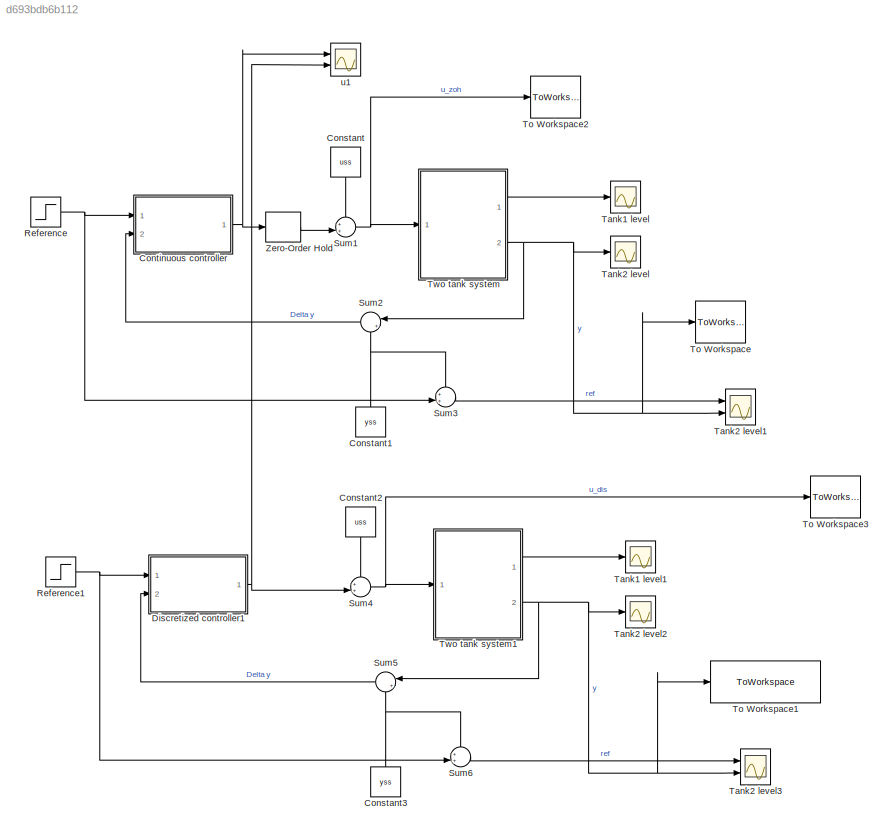
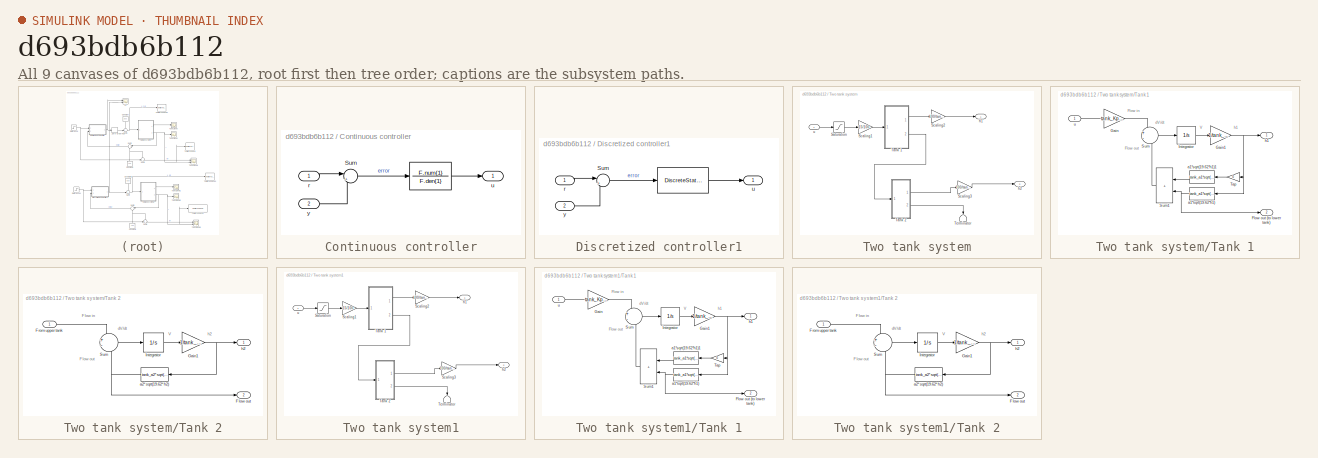
[diagram: thumbnail index - all 9 canvases of the model, root first then tree order]
MODEL mdl_d693bdb6b112
KIND model
CONFIG AbsTol = auto
CONFIG EnableMultiTasking = off
CONFIG FixedStep = auto
CONFIG MaxStep = auto
CONFIG MinStep = auto
CONFIG RelTol = 1e-3
CONFIG SampleTimeConstraint = Unconstrained
CONFIG SolverName = VariableStepAuto
CONFIG StartTime = 0.0
CONFIG StopTime =   200
BLOCK [Constant] Constant
  NameLocation = left
  Value = uss
BLOCK [Constant] Constant1
  NameLocation = right
  Value = yss
BLOCK [Constant] Constant2
  NameLocation = left
  Value = uss
BLOCK [Constant] Constant3
  NameLocation = right
  Value = yss
BLOCK [SubSystem] Continuous controller
  Ports = [2, 1]
  RequestExecContextInheritance = off
BLOCK [TransferFcn] Continuous controller/ 
  Denominator = F.den{1}
  NameLocation = top
  Numerator = F.num{1}
BLOCK [Sum] Continuous controller/Sum
  Inputs = |+-
  Ports = [2, 1]
  SaturateOnIntegerOverflow = on
BLOCK [Inport] Continuous controller/r
BLOCK [Outport] Continuous controller/u
BLOCK [Inport] Continuous controller/y
  Port = 2
BLOCK [SubSystem] Discretized controller1
  Ports = [2, 1]
  RequestExecContextInheritance = off
BLOCK [DiscreteStateSpace] Discretized controller1/ 
  A = A_discretized
  B = B_discretized
  C = C_discretized
  D = D_discretized
  NameLocation = top
  SampleTime = Ts
BLOCK [Sum] Discretized controller1/Sum
  Inputs = |+-
  Ports = [2, 1]
  SaturateOnIntegerOverflow = on
BLOCK [Inport] Discretized controller1/r
BLOCK [Outport] Discretized controller1/u
BLOCK [Inport] Discretized controller1/y
  Port = 2
BLOCK [Step] Reference
  After = 10
  SampleTime = 0
  Time = 25
BLOCK [Step] Reference1
  After = 10
  SampleTime = 0
  Time = 25
BLOCK [Sum] Sum1
  Inputs = ++|
  NameLocation = top
  Ports = [2, 1]
BLOCK [Sum] Sum2
  Inputs = |+-
  Ports = [2, 1]
BLOCK [Sum] Sum3
  Inputs = ++|
  NameLocation = top
  Ports = [2, 1]
BLOCK [Sum] Sum4
  Inputs = ++|
  NameLocation = top
  Ports = [2, 1]
BLOCK [Sum] Sum5
  Inputs = |+-
  Ports = [2, 1]
BLOCK [Sum] Sum6
  Inputs = ++|
  NameLocation = top
  Ports = [2, 1]
BLOCK [Scope] Tank1 level
  Floating = off
  NumInputPorts = 1
  Ports = [1]
  ScopeSpecificationString = Simulink.scopes.TimeScopeBlockCfg('CurrentConfiguration', extmgr.ConfigurationSet(extmgr.Configuration('Core','General UI',true),extmgr.Configuration('Core','Source UI',true),extmgr.Configuration('Sources','WiredSimulink',true,'DataLoggingSaveFormat','StructureWithTime','DataLoggingLimitDataPoints',true,'DataLoggingDecimation','1','DataLoggingDecimateData',true,'DataLoggingVariableName','ScopeData...<+1711ch>
BLOCK [Scope] Tank1 level1
  Floating = off
  NumInputPorts = 1
  Ports = [1]
  ScopeSpecificationString = Simulink.scopes.TimeScopeBlockCfg('CurrentConfiguration', extmgr.ConfigurationSet(extmgr.Configuration('Core','General UI',true),extmgr.Configuration('Core','Source UI',true),extmgr.Configuration('Sources','WiredSimulink',true,'DataLoggingSaveFormat','StructureWithTime','DataLoggingLimitDataPoints',true,'DataLoggingDecimation','1','DataLoggingDecimateData',true,'DataLoggingVariableName','ScopeData...<+1711ch>
BLOCK [Scope] Tank2 level
  Floating = off
  NumInputPorts = 1
  Ports = [1]
  ScopeSpecificationString = Simulink.scopes.TimeScopeBlockCfg('CurrentConfiguration', extmgr.ConfigurationSet(extmgr.Configuration('Core','General UI',true),extmgr.Configuration('Core','Source UI',true),extmgr.Configuration('Sources','WiredSimulink',true,'DataLoggingSaveFormat','StructureWithTime','DataLoggingDecimation','1','DataLoggingDecimateData',true,'DataLoggingVariableName','ScopeData2'),extmgr.Configuration('Visuals'...<+1663ch>
BLOCK [Scope] Tank2 level1
  Floating = off
  NumInputPorts = 2
  Ports = [2]
  ScopeSpecificationString = Simulink.scopes.TimeScopeBlockCfg('CurrentConfiguration', extmgr.ConfigurationSet(extmgr.Configuration('Core','General UI',true,'FigureColor',[1 1 1]),extmgr.Configuration('Core','Source UI',true),extmgr.Configuration('Sources','WiredSimulink',true,'DataLoggingSaveFormat','StructureWithTime','DataLoggingDecimation','1','DataLoggingDecimateData',true,'DataLoggingVariableName','ScopeData3'),extmgr.C...<+2076ch>
BLOCK [Scope] Tank2 level2
  Floating = off
  NumInputPorts = 1
  Ports = [1]
  ScopeSpecificationString = Simulink.scopes.TimeScopeBlockCfg('CurrentConfiguration', extmgr.ConfigurationSet(extmgr.Configuration('Core','General UI',true),extmgr.Configuration('Core','Source UI',true),extmgr.Configuration('Sources','WiredSimulink',true,'DataLoggingSaveFormat','StructureWithTime','DataLoggingDecimation','1','DataLoggingDecimateData',true,'DataLoggingVariableName','ScopeData2'),extmgr.Configuration('Visuals'...<+1663ch>
BLOCK [Scope] Tank2 level3
  Floating = off
  NumInputPorts = 2
  Ports = [2]
  ScopeSpecificationString = Simulink.scopes.TimeScopeBlockCfg('CurrentConfiguration', extmgr.ConfigurationSet(extmgr.Configuration('Core','General UI',true,'FigureColor',[1 1 1]),extmgr.Configuration('Core','Source UI',true),extmgr.Configuration('Sources','WiredSimulink',true,'DataLoggingSaveFormat','StructureWithTime','DataLoggingDecimation','1','DataLoggingDecimateData',true,'DataLoggingVariableName','ScopeData3'),extmgr.C...<+2076ch>
BLOCK [ToWorkspace] To Workspace
  MaxDataPoints = inf
  Ports = [1]
  SampleTime = -1
  Save2DSignal = 2-D array (concatenate along first dimension)
  SaveFormat = Structure With Time
  VariableName = tanksDis_zoh_out
BLOCK [ToWorkspace] To Workspace1
  MaxDataPoints = inf
  Ports = [1]
  SampleTime = -1
  Save2DSignal = 2-D array (concatenate along first dimension)
  SaveFormat = Structure With Time
  VariableName = tanksDis_dis_out
BLOCK [ToWorkspace] To Workspace2
  MaxDataPoints = inf
  Ports = [1]
  SampleTime = -1
  Save2DSignal = 2-D array (concatenate along first dimension)
  SaveFormat = Structure With Time
  VariableName = u_zoh
BLOCK [ToWorkspace] To Workspace3
  MaxDataPoints = inf
  Ports = [1]
  SampleTime = -1
  Save2DSignal = 2-D array (concatenate along first dimension)
  SaveFormat = Structure With Time
  VariableName = u_dis
BLOCK [SubSystem] Two tank system
  Ports = [1, 2]
  RequestExecContextInheritance = off
BLOCK [Saturate] Two tank system/Saturation
  LowerLimit = -0
  UpperLimit = 100
BLOCK [Gain] Two tank system/Scaling1
  Gain = 15/100
  OutDataTypeStr = Inherit: Same as input
  ParamDataTypeStr = Inherit: Same as input
  SaturateOnIntegerOverflow = on
BLOCK [Gain] Two tank system/Scaling2
  Gain = 100/tank_H1
  OutDataTypeStr = Inherit: Same as input
  ParamDataTypeStr = Inherit: Same as input
  SaturateOnIntegerOverflow = on
BLOCK [Gain] Two tank system/Scaling3
  Gain = 100/tank_H2
  OutDataTypeStr = Inherit: Same as input
  ParamDataTypeStr = Inherit: Same as input
  SaturateOnIntegerOverflow = on
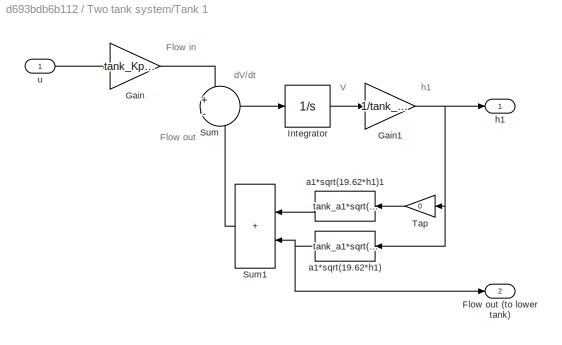
BLOCK [SubSystem] Two tank system/Tank 1
  Ports = [1, 2]
  RequestExecContextInheritance = off
BLOCK [Outport] Two tank system/Tank 1/Flow out  (to lower tank)
  Port = 2
BLOCK [Gain] Two tank system/Tank 1/Gain
  Gain = tank_Kpump
  OutDataTypeStr = Inherit: Same as input
  ParamDataTypeStr = Inherit: Same as input
  SaturateOnIntegerOverflow = on
BLOCK [Gain] Two tank system/Tank 1/Gain1
  Gain = 1/tank_A1
  OutDataTypeStr = Inherit: Same as input
  ParamDataTypeStr = Inherit: Same as input
  SaturateOnIntegerOverflow = on
BLOCK [Integrator] Two tank system/Tank 1/Integrator
  InitialCondition = tank_init_h1*tank_A1
  LimitOutput = on
  LowerSaturationLimit = 0
  Ports = [1, 1]
  UpperSaturationLimit = tank_H1*tank_A1
BLOCK [Sum] Two tank system/Tank 1/Sum
  InputSameDT = on
  Inputs = +-
  OutDataTypeStr = Inherit: Same as first input
  Ports = [2, 1]
  SaturateOnIntegerOverflow = on
BLOCK [Sum] Two tank system/Tank 1/Sum1
  IconShape = rectangular
  InputSameDT = on
  NameLocation = top
  OutDataTypeStr = Inherit: Same as first input
  Ports = [2, 1]
  SaturateOnIntegerOverflow = on
BLOCK [Gain] Two tank system/Tank 1/Tap
  Gain = 0
  NameLocation = top
  OutDataTypeStr = Inherit: Same as input
  ParamDataTypeStr = Inherit: Same as input
  SaturateOnIntegerOverflow = on
BLOCK [Fcn] Two tank system/Tank 1/a1*sqrt(19.62*h1)
  Expr = tank_a1*sqrt(19.62*u)
BLOCK [Fcn] Two tank system/Tank 1/a1*sqrt(19.62*h1)1
  Expr = tank_a1*sqrt(19.62*u)
  NameLocation = top
BLOCK [Outport] Two tank system/Tank 1/h1
BLOCK [Inport] Two tank system/Tank 1/u
BLOCK [SubSystem] Two tank system/Tank 2
  Ports = [1, 2]
  RequestExecContextInheritance = off
BLOCK [Outport] Two tank system/Tank 2/Flow out
  Port = 2
BLOCK [Inport] Two tank system/Tank 2/From upper tank
BLOCK [Gain] Two tank system/Tank 2/Gain1
  Gain = 1/tank_A2
  OutDataTypeStr = Inherit: Same as input
  ParamDataTypeStr = Inherit: Same as input
  SaturateOnIntegerOverflow = on
BLOCK [Integrator] Two tank system/Tank 2/Integrator
  InitialCondition = tank_init_h2*tank_A2
  LimitOutput = on
  LowerSaturationLimit = 0
  Ports = [1, 1]
  UpperSaturationLimit = tank_H2*tank_A2
BLOCK [Sum] Two tank system/Tank 2/Sum
  InputSameDT = on
  Inputs = +-
  OutDataTypeStr = Inherit: Same as first input
  Ports = [2, 1]
  SaturateOnIntegerOverflow = on
BLOCK [Fcn] Two tank system/Tank 2/a2*sqrt(19.62*h2)
  Expr = tank_a2*sqrt(19.62*u)
BLOCK [Outport] Two tank system/Tank 2/h2
BLOCK [Terminator] Two tank system/Terminator
  NameLocation = right
BLOCK [Outport] Two tank system/h1
BLOCK [Outport] Two tank system/h2
  Port = 2
BLOCK [Inport] Two tank system/u
BLOCK [SubSystem] Two tank system1
  Ports = [1, 2]
  RequestExecContextInheritance = off
BLOCK [Saturate] Two tank system1/Saturation
  LowerLimit = -0
  UpperLimit = 100
BLOCK [Gain] Two tank system1/Scaling1
  Gain = 15/100
  OutDataTypeStr = Inherit: Same as input
  ParamDataTypeStr = Inherit: Same as input
  SaturateOnIntegerOverflow = on
BLOCK [Gain] Two tank system1/Scaling2
  Gain = 100/tank_H1
  OutDataTypeStr = Inherit: Same as input
  ParamDataTypeStr = Inherit: Same as input
  SaturateOnIntegerOverflow = on
BLOCK [Gain] Two tank system1/Scaling3
  Gain = 100/tank_H2
  OutDataTypeStr = Inherit: Same as input
  ParamDataTypeStr = Inherit: Same as input
  SaturateOnIntegerOverflow = on
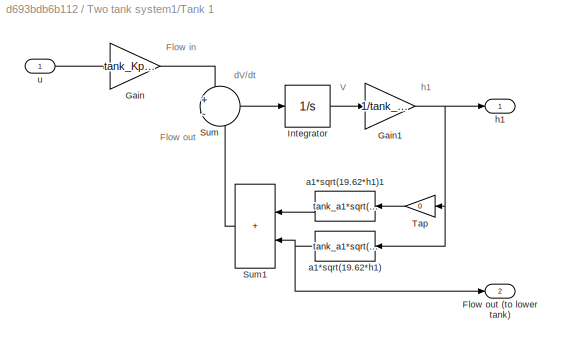
BLOCK [SubSystem] Two tank system1/Tank 1
  Ports = [1, 2]
  RequestExecContextInheritance = off
BLOCK [Outport] Two tank system1/Tank 1/Flow out  (to lower tank)
  Port = 2
BLOCK [Gain] Two tank system1/Tank 1/Gain
  Gain = tank_Kpump
  OutDataTypeStr = Inherit: Same as input
  ParamDataTypeStr = Inherit: Same as input
  SaturateOnIntegerOverflow = on
BLOCK [Gain] Two tank system1/Tank 1/Gain1
  Gain = 1/tank_A1
  OutDataTypeStr = Inherit: Same as input
  ParamDataTypeStr = Inherit: Same as input
  SaturateOnIntegerOverflow = on
BLOCK [Integrator] Two tank system1/Tank 1/Integrator
  InitialCondition = tank_init_h1*tank_A1
  LimitOutput = on
  LowerSaturationLimit = 0
  Ports = [1, 1]
  UpperSaturationLimit = tank_H1*tank_A1
BLOCK [Sum] Two tank system1/Tank 1/Sum
  InputSameDT = on
  Inputs = +-
  OutDataTypeStr = Inherit: Same as first input
  Ports = [2, 1]
  SaturateOnIntegerOverflow = on
BLOCK [Sum] Two tank system1/Tank 1/Sum1
  IconShape = rectangular
  InputSameDT = on
  NameLocation = top
  OutDataTypeStr = Inherit: Same as first input
  Ports = [2, 1]
  SaturateOnIntegerOverflow = on
BLOCK [Gain] Two tank system1/Tank 1/Tap
  Gain = 0
  NameLocation = top
  OutDataTypeStr = Inherit: Same as input
  ParamDataTypeStr = Inherit: Same as input
  SaturateOnIntegerOverflow = on
BLOCK [Fcn] Two tank system1/Tank 1/a1*sqrt(19.62*h1)
  Expr = tank_a1*sqrt(19.62*u)
BLOCK [Fcn] Two tank system1/Tank 1/a1*sqrt(19.62*h1)1
  Expr = tank_a1*sqrt(19.62*u)
  NameLocation = top
BLOCK [Outport] Two tank system1/Tank 1/h1
BLOCK [Inport] Two tank system1/Tank 1/u
BLOCK [SubSystem] Two tank system1/Tank 2
  Ports = [1, 2]
  RequestExecContextInheritance = off
BLOCK [Outport] Two tank system1/Tank 2/Flow out
  Port = 2
BLOCK [Inport] Two tank system1/Tank 2/From upper tank
BLOCK [Gain] Two tank system1/Tank 2/Gain1
  Gain = 1/tank_A2
  OutDataTypeStr = Inherit: Same as input
  ParamDataTypeStr = Inherit: Same as input
  SaturateOnIntegerOverflow = on
BLOCK [Integrator] Two tank system1/Tank 2/Integrator
  InitialCondition = tank_init_h2*tank_A2
  LimitOutput = on
  LowerSaturationLimit = 0
  Ports = [1, 1]
  UpperSaturationLimit = tank_H2*tank_A2
BLOCK [Sum] Two tank system1/Tank 2/Sum
  InputSameDT = on
  Inputs = +-
  OutDataTypeStr = Inherit: Same as first input
  Ports = [2, 1]
  SaturateOnIntegerOverflow = on
BLOCK [Fcn] Two tank system1/Tank 2/a2*sqrt(19.62*h2)
  Expr = tank_a2*sqrt(19.62*u)
BLOCK [Outport] Two tank system1/Tank 2/h2
BLOCK [Terminator] Two tank system1/Terminator
  NameLocation = right
BLOCK [Outport] Two tank system1/h1
BLOCK [Outport] Two tank system1/h2
  Port = 2
BLOCK [Inport] Two tank system1/u
BLOCK [ZeroOrderHold] Zero-Order Hold
  SampleTime = Ts
BLOCK [Scope] u1
  Floating = off
  NumInputPorts = 2
  Ports = [2]
  ScopeSpecificationString = Simulink.scopes.TimeScopeBlockCfg('CurrentConfiguration', extmgr.ConfigurationSet(extmgr.Configuration('Core','General UI',true),extmgr.Configuration('Core','Source UI',true),extmgr.Configuration('Sources','WiredSimulink',true,'DataLoggingSaveFormat','StructureWithTime','DataLoggingLimitDataPoints',true,'DataLoggingDecimation','1','DataLoggingDecimateData',true,'DataLoggingVariableName','ScopeData...<+1857ch>
ANNOTATION Two tank system/Tank 1: Flow in
ANNOTATION Two tank system/Tank 1: Flow out
ANNOTATION Two tank system/Tank 1: V
ANNOTATION Two tank system/Tank 1: dV/dt
ANNOTATION Two tank system/Tank 1: h1
ANNOTATION Two tank system/Tank 2: Flow in
ANNOTATION Two tank system/Tank 2: Flow out
ANNOTATION Two tank system/Tank 2: V
ANNOTATION Two tank system/Tank 2: dV/dt
ANNOTATION Two tank system/Tank 2: h2
ANNOTATION Two tank system1/Tank 1: Flow in
ANNOTATION Two tank system1/Tank 1: Flow out
ANNOTATION Two tank system1/Tank 1: V
ANNOTATION Two tank system1/Tank 1: dV/dt
ANNOTATION Two tank system1/Tank 1: h1
ANNOTATION Two tank system1/Tank 2: Flow in
ANNOTATION Two tank system1/Tank 2: Flow out
ANNOTATION Two tank system1/Tank 2: V
ANNOTATION Two tank system1/Tank 2: dV/dt
ANNOTATION Two tank system1/Tank 2: h2
NET Constant1:1 -> Sum2:2, Sum3:1
LINE Constant2:1 -> Sum4:1
NET Constant3:1 -> Sum5:2, Sum6:1
LINE Constant:1 -> Sum1:1
LINE Continuous controller/ :1 -> Continuous controller/u:1
LINE Continuous controller/Sum:1 -> Continuous controller/ :1
LINE Continuous controller/r:1 -> Continuous controller/Sum:1
LINE Continuous controller/y:1 -> Continuous controller/Sum:2
NET Continuous controller:1 -> Zero-Order Hold:1, u1:1
LINE Discretized controller1/ :1 -> Discretized controller1/u:1
LINE Discretized controller1/Sum:1 -> Discretized controller1/ :1
LINE Discretized controller1/r:1 -> Discretized controller1/Sum:1
LINE Discretized controller1/y:1 -> Discretized controller1/Sum:2
NET Discretized controller1:1 -> Sum4:2, u1:2
NET Reference1:1 -> Discretized controller1:1, Sum6:2
NET Reference:1 -> Continuous controller:1, Sum3:2
NET Sum1:1 -> To Workspace2:1, Two tank system:1
LINE Sum2:1 -> Continuous controller:2
LINE Sum3:1 -> Tank2 level1:1
NET Sum4:1 -> To Workspace3:1, Two tank system1:1
LINE Sum5:1 -> Discretized controller1:2
LINE Sum6:1 -> Tank2 level3:1
LINE Two tank system/Saturation:1 -> Two tank system/Scaling1:1
LINE Two tank system/Scaling1:1 -> Two tank system/Tank 1:1
LINE Two tank system/Scaling2:1 -> Two tank system/h1:1
LINE Two tank system/Scaling3:1 -> Two tank system/h2:1
NET Two tank system/Tank 1/Gain1:1 -> Two tank system/Tank 1/Tap:1, Two tank system/Tank 1/a1*sqrt(19.62*h1):1, Two tank system/Tank 1/h1:1
LINE Two tank system/Tank 1/Gain:1 -> Two tank system/Tank 1/Sum:1
LINE Two tank system/Tank 1/Integrator:1 -> Two tank system/Tank 1/Gain1:1
LINE Two tank system/Tank 1/Sum1:1 -> Two tank system/Tank 1/Sum:2
LINE Two tank system/Tank 1/Sum:1 -> Two tank system/Tank 1/Integrator:1
LINE Two tank system/Tank 1/Tap:1 -> Two tank system/Tank 1/a1*sqrt(19.62*h1)1:1
LINE Two tank system/Tank 1/a1*sqrt(19.62*h1)1:1 -> Two tank system/Tank 1/Sum1:1
NET Two tank system/Tank 1/a1*sqrt(19.62*h1):1 -> Two tank system/Tank 1/Flow out  (to lower tank):1, Two tank system/Tank 1/Sum1:2
LINE Two tank system/Tank 1/u:1 -> Two tank system/Tank 1/Gain:1
LINE Two tank system/Tank 1:1 -> Two tank system/Scaling2:1
LINE Two tank system/Tank 1:2 -> Two tank system/Tank 2:1
LINE Two tank system/Tank 2/From upper tank:1 -> Two tank system/Tank 2/Sum:1
NET Two tank system/Tank 2/Gain1:1 -> Two tank system/Tank 2/a2*sqrt(19.62*h2):1, Two tank system/Tank 2/h2:1
LINE Two tank system/Tank 2/Integrator:1 -> Two tank system/Tank 2/Gain1:1
LINE Two tank system/Tank 2/Sum:1 -> Two tank system/Tank 2/Integrator:1
NET Two tank system/Tank 2/a2*sqrt(19.62*h2):1 -> Two tank system/Tank 2/Flow out:1, Two tank system/Tank 2/Sum:2
LINE Two tank system/Tank 2:1 -> Two tank system/Scaling3:1
LINE Two tank system/Tank 2:2 -> Two tank system/Terminator:1
LINE Two tank system/u:1 -> Two tank system/Saturation:1
LINE Two tank system1/Saturation:1 -> Two tank system1/Scaling1:1
LINE Two tank system1/Scaling1:1 -> Two tank system1/Tank 1:1
LINE Two tank system1/Scaling2:1 -> Two tank system1/h1:1
LINE Two tank system1/Scaling3:1 -> Two tank system1/h2:1
NET Two tank system1/Tank 1/Gain1:1 -> Two tank system1/Tank 1/Tap:1, Two tank system1/Tank 1/a1*sqrt(19.62*h1):1, Two tank system1/Tank 1/h1:1
LINE Two tank system1/Tank 1/Gain:1 -> Two tank system1/Tank 1/Sum:1
LINE Two tank system1/Tank 1/Integrator:1 -> Two tank system1/Tank 1/Gain1:1
LINE Two tank system1/Tank 1/Sum1:1 -> Two tank system1/Tank 1/Sum:2
LINE Two tank system1/Tank 1/Sum:1 -> Two tank system1/Tank 1/Integrator:1
LINE Two tank system1/Tank 1/Tap:1 -> Two tank system1/Tank 1/a1*sqrt(19.62*h1)1:1
LINE Two tank system1/Tank 1/a1*sqrt(19.62*h1)1:1 -> Two tank system1/Tank 1/Sum1:1
NET Two tank system1/Tank 1/a1*sqrt(19.62*h1):1 -> Two tank system1/Tank 1/Flow out  (to lower tank):1, Two tank system1/Tank 1/Sum1:2
LINE Two tank system1/Tank 1/u:1 -> Two tank system1/Tank 1/Gain:1
LINE Two tank system1/Tank 1:1 -> Two tank system1/Scaling2:1
LINE Two tank system1/Tank 1:2 -> Two tank system1/Tank 2:1
LINE Two tank system1/Tank 2/From upper tank:1 -> Two tank system1/Tank 2/Sum:1
NET Two tank system1/Tank 2/Gain1:1 -> Two tank system1/Tank 2/a2*sqrt(19.62*h2):1, Two tank system1/Tank 2/h2:1
LINE Two tank system1/Tank 2/Integrator:1 -> Two tank system1/Tank 2/Gain1:1
LINE Two tank system1/Tank 2/Sum:1 -> Two tank system1/Tank 2/Integrator:1
NET Two tank system1/Tank 2/a2*sqrt(19.62*h2):1 -> Two tank system1/Tank 2/Flow out:1, Two tank system1/Tank 2/Sum:2
LINE Two tank system1/Tank 2:1 -> Two tank system1/Scaling3:1
LINE Two tank system1/Tank 2:2 -> Two tank system1/Terminator:1
LINE Two tank system1/u:1 -> Two tank system1/Saturation:1
LINE Two tank system1:1 -> Tank1 level1:1
NET Two tank system1:2 -> Sum5:1, Tank2 level2:1, Tank2 level3:2, To Workspace1:1
LINE Two tank system:1 -> Tank1 level:1
NET Two tank system:2 -> Sum2:1, Tank2 level1:2, Tank2 level:1, To Workspace:1
LINE Zero-Order Hold:1 -> Sum1:2
note: NET lines group one-source signal fan-out (src -> all destinations, sorted); 1:1 wires keep LINE
